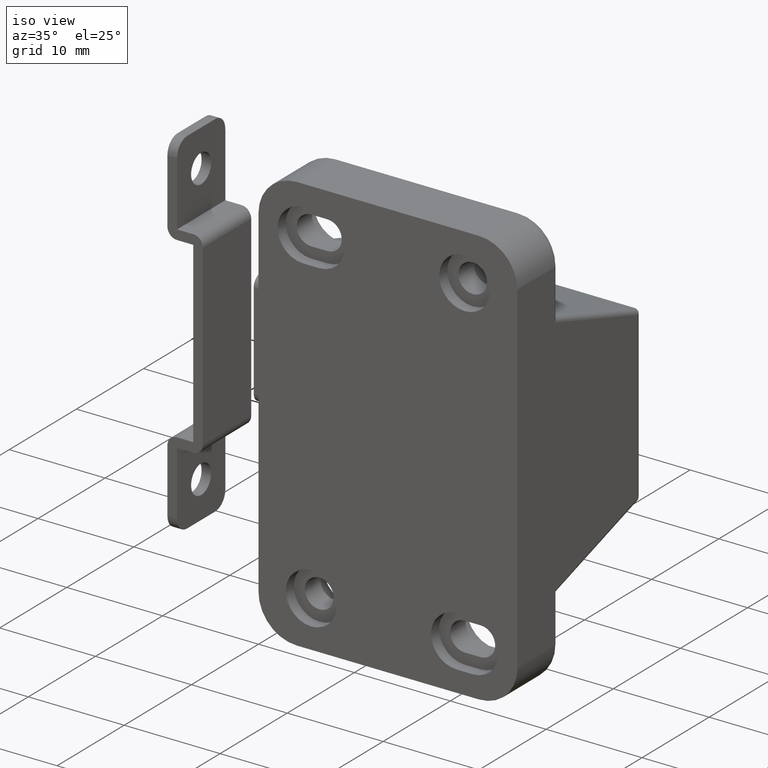
[diagram: clean part render]
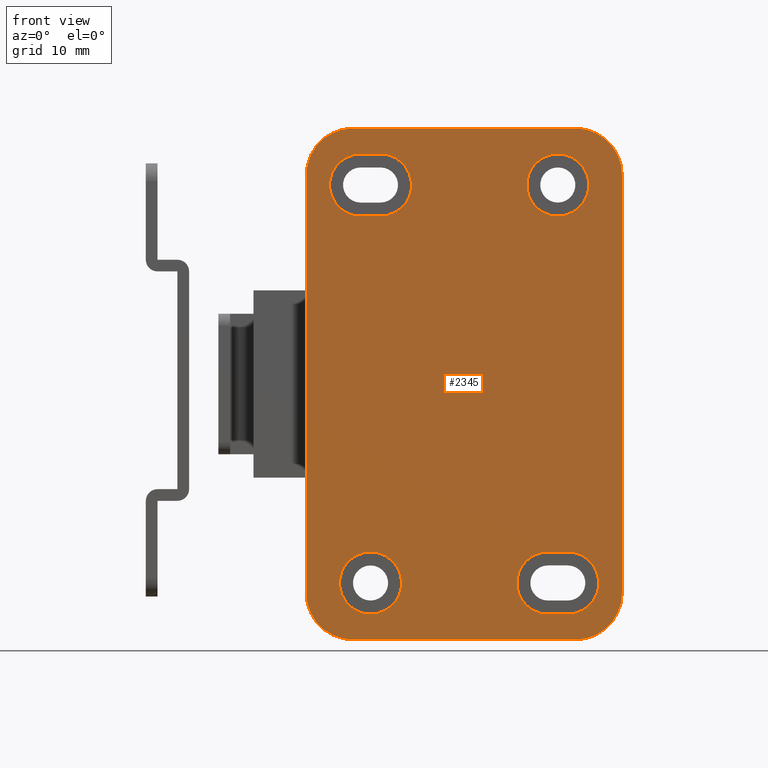
[diagram: tour spotlight — one face highlighted and labeled with its STEP entity id]
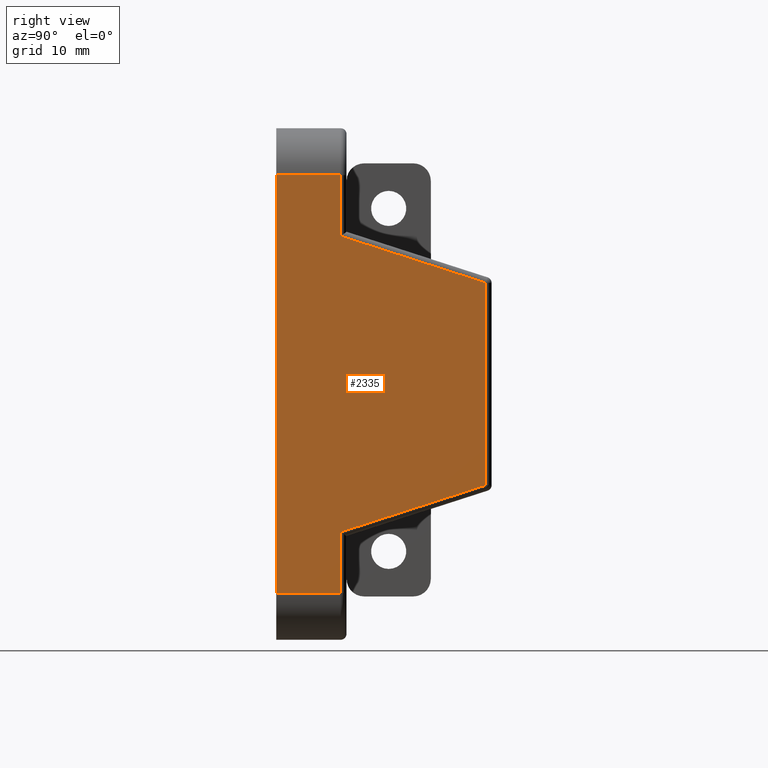
[diagram: tour spotlight — one face highlighted and labeled with its STEP entity id]
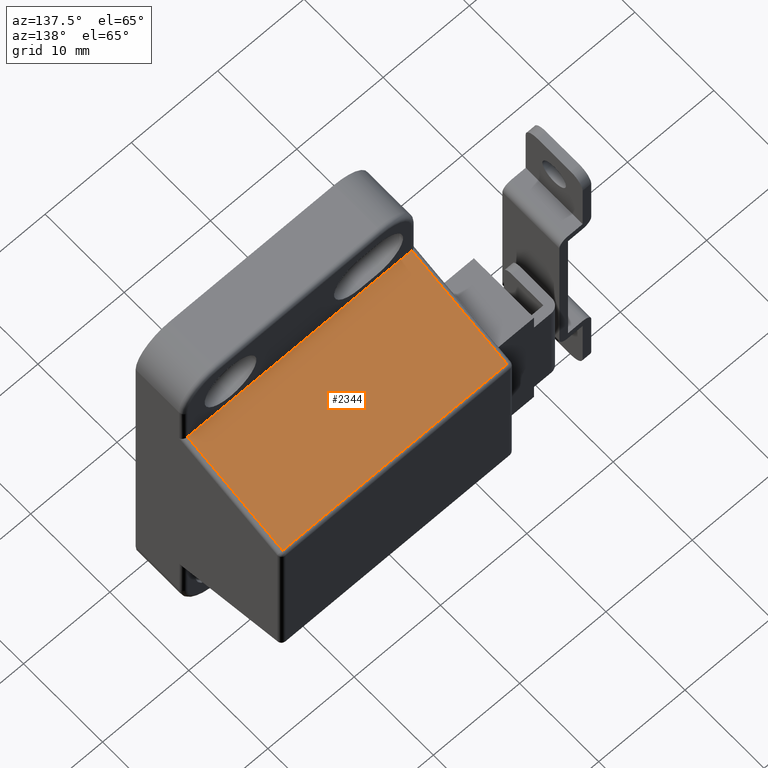
[diagram: tour spotlight — one face highlighted and labeled with its STEP entity id]
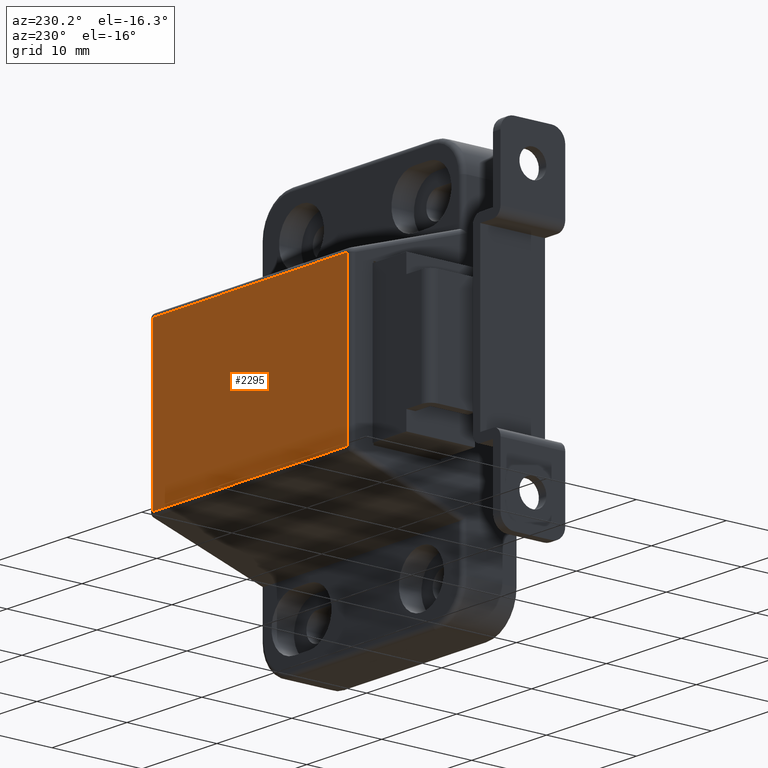
[diagram: tour spotlight — one face highlighted and labeled with its STEP entity id]
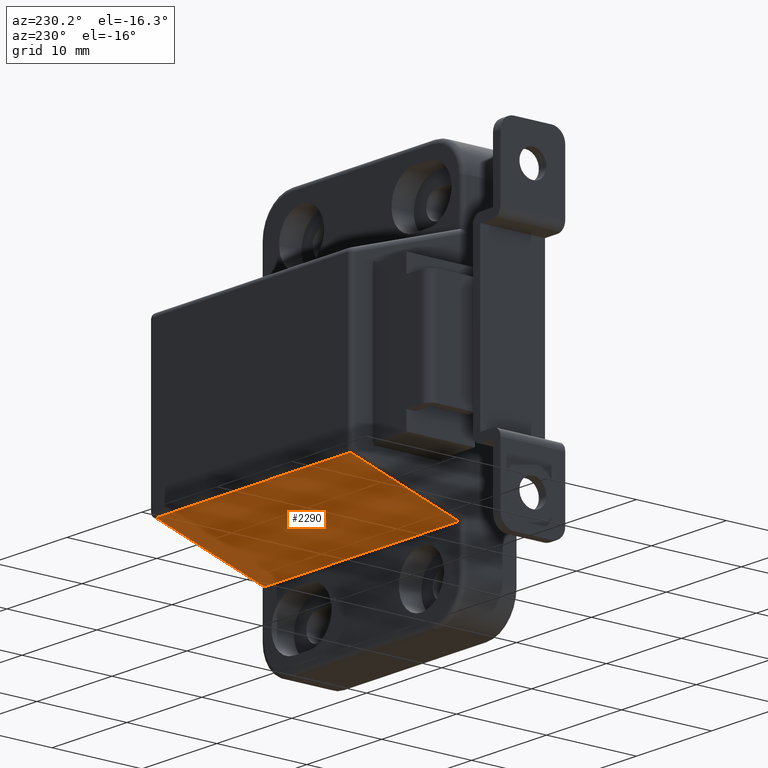
[diagram: tour spotlight — one face highlighted and labeled with its STEP entity id]
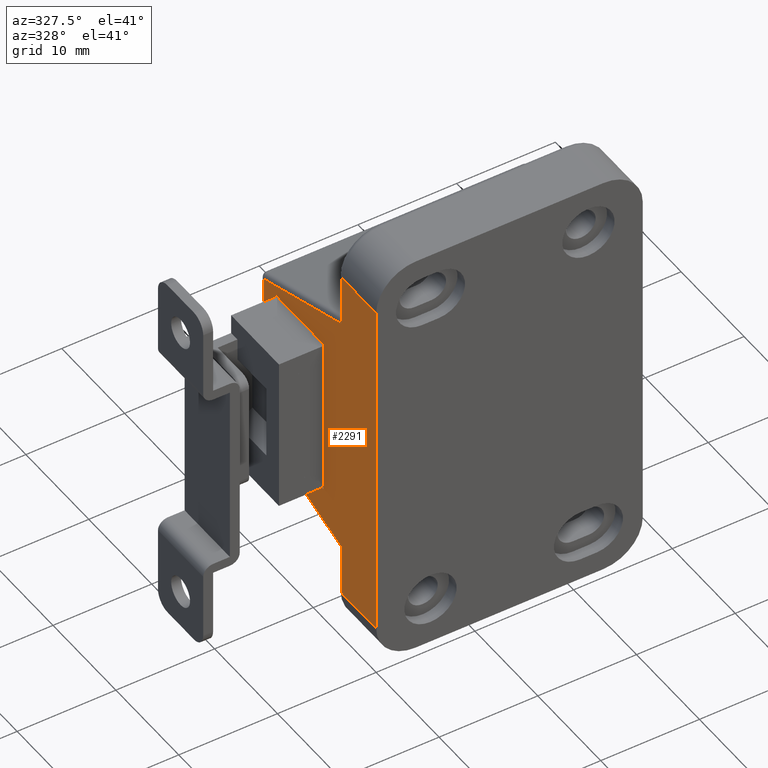
[diagram: tour spotlight — one face highlighted and labeled with its STEP entity id]
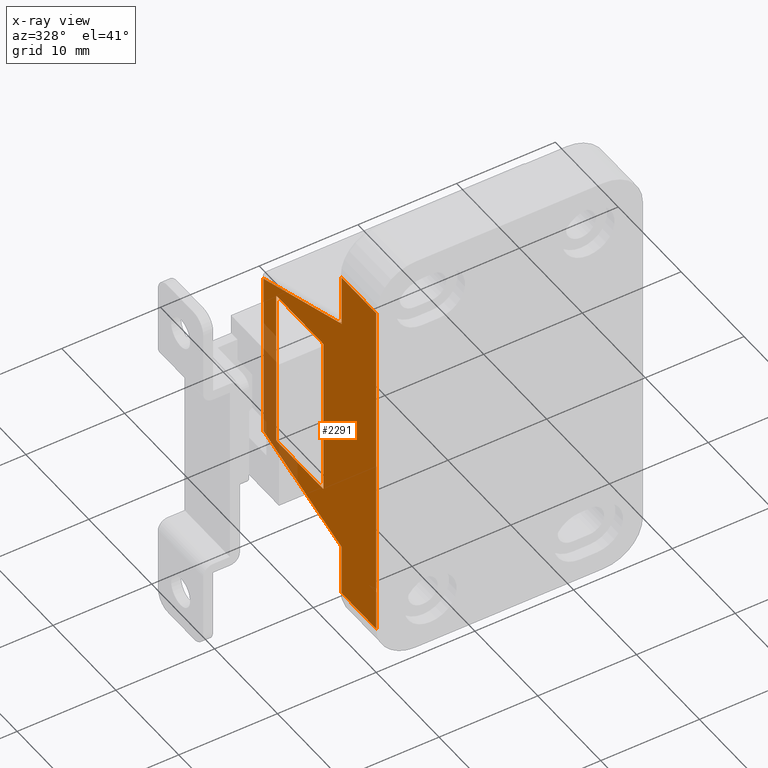
[diagram: x-ray of the same camera — body ghosted, this tour face saturated]
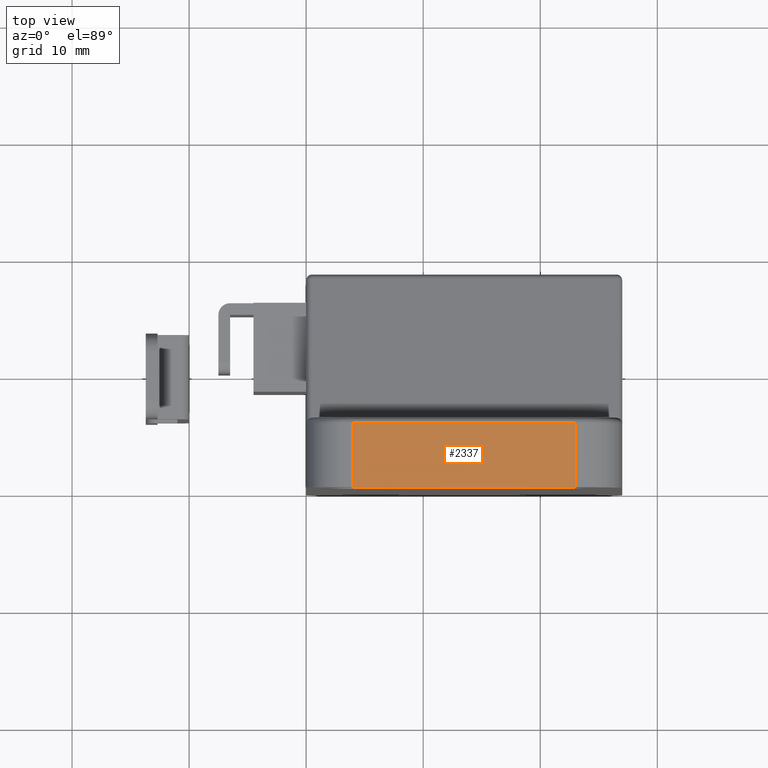
[diagram: tour spotlight — one face highlighted and labeled with its STEP entity id]
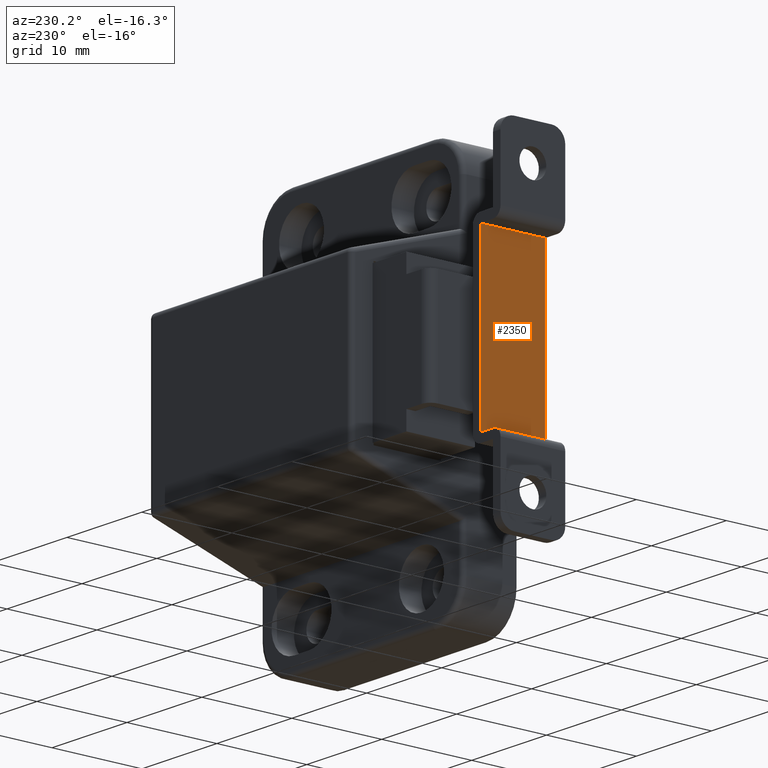
[diagram: tour spotlight — one face highlighted and labeled with its STEP entity id]
A machine part: a face-by-face anatomy tour. The part has 138 B-rep faces; the first image is the clean iso view, then the 8 largest visible faces are spotlighted one at a time (largest first), each with its STEP entity span.

Face 1 — front view, entity #2345. In plain terms, the highlighted planar face has unit normal (0, 1, 0).
Definition (entity closure, byte-faithful):
#73=FACE_BOUND('',#911,.T.);
#74=FACE_BOUND('',#912,.T.);
#75=FACE_BOUND('',#913,.T.);
#76=FACE_BOUND('',#914,.T.);
#117=PLANE('',#2561);
#205=LINE('',#3515,#432);
#213=LINE('',#3532,#440);
#217=LINE('',#3565,#444);
#221=LINE('',#3576,#448);
#225=LINE('',#3590,#452);
#230=LINE('',#3604,#457);
#262=LINE('',#3714,#489);
#265=LINE('',#3722,#492);
#432=VECTOR('',#2812,35.7);
#440=VECTOR('',#2826,19.);
#444=VECTOR('',#2864,1.7);
#448=VECTOR('',#2876,1.7);
#452=VECTOR('',#2888,1.7);
#457=VECTOR('',#2901,1.7);
#489=VECTOR('',#3027,35.7);
#492=VECTOR('',#3036,19.);
#753=FACE_OUTER_BOUND('',#910,.T.);
#910=EDGE_LOOP('',(#1943,#1944,#1945,#1946,#1947,#1948,#1949,#1950));
#911=EDGE_LOOP('',(#1951));
#912=EDGE_LOOP('',(#1952));
#913=EDGE_LOOP('',(#1953,#1954,#1955,#1956));
#914=EDGE_LOOP('',(#1957,#1958,#1959,#1960));
#1011=CIRCLE('',#2472,4.);
#1012=CIRCLE('',#2475,4.);
#1014=CIRCLE('',#2479,2.65);
#1017=CIRCLE('',#2484,2.65);
#1019=CIRCLE('',#2488,2.65);
#1021=CIRCLE('',#2492,2.65);
#1025=CIRCLE('',#2500,2.65);
#1027=CIRCLE('',#2504,2.65);
#1046=CIRCLE('',#2551,4.);
#1047=CIRCLE('',#2554,4.);
#1115=VERTEX_POINT('',#3512);
#1116=VERTEX_POINT('',#3514);
#1121=VERTEX_POINT('',#3526);
#1122=VERTEX_POINT('',#3530);
#1123=VERTEX_POINT('',#3534);
#1125=VERTEX_POINT('',#3541);
#1128=VERTEX_POINT('',#3549);
#1130=VERTEX_POINT('',#3555);
#1131=VERTEX_POINT('',#3556);
#1134=VERTEX_POINT('',#3564);
#1136=VERTEX_POINT('',#3570);
#1142=VERTEX_POINT('',#3588);
#1143=VERTEX_POINT('',#3589);
#1146=VERTEX_POINT('',#3597);
#1148=VERTEX_POINT('',#3603);
#1179=VERTEX_POINT('',#3712);
#1180=VERTEX_POINT('',#3716);
#1181=VERTEX_POINT('',#3720);
#1356=EDGE_CURVE('',#1116,#1115,#205,.T.);
#1363=EDGE_CURVE('',#1115,#1121,#1011,.T.);
#1365=EDGE_CURVE('',#1121,#1122,#213,.T.);
#1367=EDGE_CURVE('',#1122,#1123,#1012,.T.);
#1369=EDGE_CURVE('',#1125,#1125,#1014,.T.);
#1372=EDGE_CURVE('',#1128,#1128,#1017,.T.);
#1374=EDGE_CURVE('',#1130,#1131,#1019,.T.);
#1378=EDGE_CURVE('',#1134,#1130,#217,.T.);
#1381=EDGE_CURVE('',#1136,#1134,#1021,.T.);
#1384=EDGE_CURVE('',#1131,#1136,#221,.T.);
#1390=EDGE_CURVE('',#1142,#1143,#225,.T.);
#1394=EDGE_CURVE('',#1146,#1142,#1025,.T.);
#1397=EDGE_CURVE('',#1148,#1146,#230,.T.);
#1400=EDGE_CURVE('',#1143,#1148,#1027,.T.);
#1448=EDGE_CURVE('',#1123,#1179,#262,.T.);
#1450=EDGE_CURVE('',#1179,#1180,#1046,.T.);
#1452=EDGE_CURVE('',#1180,#1181,#265,.T.);
#1453=EDGE_CURVE('',#1181,#1116,#1047,.T.);
#1943=ORIENTED_EDGE('',*,*,#1356,.T.);
#1944=ORIENTED_EDGE('',*,*,#1363,.T.);
#1945=ORIENTED_EDGE('',*,*,#1365,.T.);
#1946=ORIENTED_EDGE('',*,*,#1367,.T.);
#1947=ORIENTED_EDGE('',*,*,#1448,.T.);
#1948=ORIENTED_EDGE('',*,*,#1450,.T.);
#1949=ORIENTED_EDGE('',*,*,#1452,.T.);
#1950=ORIENTED_EDGE('',*,*,#1453,.T.);
#1951=ORIENTED_EDGE('',*,*,#1369,.T.);
#1952=ORIENTED_EDGE('',*,*,#1372,.T.);
#1953=ORIENTED_EDGE('',*,*,#1374,.T.);
#1954=ORIENTED_EDGE('',*,*,#1384,.T.);
#1955=ORIENTED_EDGE('',*,*,#1381,.T.);
#1956=ORIENTED_EDGE('',*,*,#1378,.T.);
#1957=ORIENTED_EDGE('',*,*,#1390,.T.);
#1958=ORIENTED_EDGE('',*,*,#1400,.T.);
#1959=ORIENTED_EDGE('',*,*,#1397,.T.);
#1960=ORIENTED_EDGE('',*,*,#1394,.T.);
#2345=ADVANCED_FACE('',(#753,#73,#74,#75,#76),#117,.F.);
#2472=AXIS2_PLACEMENT_3D('',#3528,#2821,#2822);
#2475=AXIS2_PLACEMENT_3D('',#3536,#2830,#2831);
#2479=AXIS2_PLACEMENT_3D('',#3542,#2838,#2839);
#2484=AXIS2_PLACEMENT_3D('',#3550,#2848,#2849);
#2488=AXIS2_PLACEMENT_3D('',#3557,#2856,#2857);
#2492=AXIS2_PLACEMENT_3D('',#3571,#2869,#2870);
#2500=AXIS2_PLACEMENT_3D('',#3598,#2894,#2895);
#2504=AXIS2_PLACEMENT_3D('',#3609,#2906,#2907);
#2551=AXIS2_PLACEMENT_3D('',#3718,#3031,#3032);
#2554=AXIS2_PLACEMENT_3D('',#3724,#3039,#3040);
#2561=AXIS2_PLACEMENT_3D('',#3743,#3061,#3062);
#2812=DIRECTION('',(-1.,0.,0.));
#2821=DIRECTION('center_axis',(0.,-1.,0.));
#2822=DIRECTION('ref_axis',(0.,0.,1.));
#2826=DIRECTION('',(1.11022302462516E-15,0.,-1.));
#2830=DIRECTION('center_axis',(0.,-1.,0.));
#2831=DIRECTION('ref_axis',(-1.,0.,0.));
#2838=DIRECTION('center_axis',(0.,1.,0.));
#2839=DIRECTION('ref_axis',(1.,0.,2.48789473305357E-16));
#2848=DIRECTION('center_axis',(0.,1.,0.));
#2849=DIRECTION('ref_axis',(1.,0.,2.48789473305357E-16));
#2856=DIRECTION('center_axis',(0.,1.,0.));
#2857=DIRECTION('ref_axis',(-1.,0.,-2.48789473305357E-16));
#2864=DIRECTION('',(2.48789473305357E-16,0.,-1.));
#2869=DIRECTION('center_axis',(0.,1.,0.));
#2870=DIRECTION('ref_axis',(1.,0.,2.48789473305357E-16));
#2876=DIRECTION('',(-2.48789473305357E-16,0.,1.));
#2888=DIRECTION('',(2.48789473305357E-16,0.,-1.));
#2894=DIRECTION('center_axis',(0.,1.,0.));
#2895=DIRECTION('ref_axis',(1.,0.,2.48789473305357E-16));
#2901=DIRECTION('',(-2.48789473305357E-16,0.,1.));
#2906=DIRECTION('center_axis',(0.,1.,0.));
#2907=DIRECTION('ref_axis',(-1.,0.,-3.93134309232521E-17));
#3027=DIRECTION('',(1.,0.,2.48789473305357E-16));
#3031=DIRECTION('center_axis',(0.,-1.,0.));
#3032=DIRECTION('ref_axis',(1.11022302462516E-15,0.,-1.));
#3036=DIRECTION('',(2.3373116307898E-16,0.,1.));
#3039=DIRECTION('center_axis',(0.,-1.,0.));
#3040=DIRECTION('ref_axis',(1.,0.,1.38777878078145E-16));
#3061=DIRECTION('center_axis',(0.,1.,0.));
#3062=DIRECTION('ref_axis',(0.,0.,1.));
#3512=CARTESIAN_POINT('',(-17.85,0.,-2.22044604925031E-15));
#3514=CARTESIAN_POINT('',(17.85,0.,8.70952663313982E-15));
#3515=CARTESIAN_POINT('',(-39.4288988106387,0.,0.));
#3526=CARTESIAN_POINT('',(-21.85,0.,-4.));
#3528=CARTESIAN_POINT('Origin',(-17.85,0.,-4.));
#3530=CARTESIAN_POINT('',(-21.85,0.,-23.));
#3532=CARTESIAN_POINT('',(-21.85,0.,-4.));
#3534=CARTESIAN_POINT('',(-17.85,0.,-27.));
#3536=CARTESIAN_POINT('Origin',(-17.85,0.,-23.));
#3541=CARTESIAN_POINT('',(14.35,0.,-21.5));
#3542=CARTESIAN_POINT('Origin',(17.,0.,-21.5));
#3549=CARTESIAN_POINT('',(-19.65,0.,-5.5));
#3550=CARTESIAN_POINT('Origin',(-17.,0.,-5.5));
#3555=CARTESIAN_POINT('',(19.65,0.,-6.35));
#3556=CARTESIAN_POINT('',(14.35,0.,-6.35));
#3557=CARTESIAN_POINT('Origin',(17.,0.,-6.35));
#3564=CARTESIAN_POINT('',(19.65,0.,-4.65));
#3565=CARTESIAN_POINT('',(19.65,0.,-8.95000000000002));
#3570=CARTESIAN_POINT('',(14.35,0.,-4.65));
#3571=CARTESIAN_POINT('Origin',(17.,0.,-4.65));
#3576=CARTESIAN_POINT('',(14.35,0.,-9.80000000000001));
#3588=CARTESIAN_POINT('',(-14.35,0.,-20.65));
#3589=CARTESIAN_POINT('',(-14.35,0.,-22.35));
#3590=CARTESIAN_POINT('',(-14.35,0.,-16.95));
#3597=CARTESIAN_POINT('',(-19.65,0.,-20.65));
#3598=CARTESIAN_POINT('Origin',(-17.,0.,-20.65));
#3603=CARTESIAN_POINT('',(-19.65,0.,-22.35));
#3604=CARTESIAN_POINT('',(-19.65,0.,-17.8));
#3609=CARTESIAN_POINT('Origin',(-17.,0.,-22.35));
#3712=CARTESIAN_POINT('',(17.85,0.,-27.));
#3714=CARTESIAN_POINT('',(-17.85,0.,-27.));
#3716=CARTESIAN_POINT('',(21.85,0.,-23.));
#3718=CARTESIAN_POINT('Origin',(17.85,0.,-23.));
#3720=CARTESIAN_POINT('',(21.85,0.,-3.99999999999999));
#3722=CARTESIAN_POINT('',(21.85,0.,-23.));
#3724=CARTESIAN_POINT('Origin',(17.85,0.,-3.99999999999999));
#3743=CARTESIAN_POINT('Origin',(-39.4288988106387,0.,-13.25));

Face 2 — right view, entity #2335. In plain terms, the highlighted planar face has unit normal (1, 0, 0).
Definition (entity closure, byte-faithful):
#109=PLANE('',#2549);
#174=LINE('',#3401,#401);
#179=LINE('',#3424,#406);
#182=LINE('',#3434,#409);
#189=LINE('',#3463,#416);
#199=LINE('',#3496,#426);
#214=LINE('',#3535,#441);
#261=LINE('',#3713,#488);
#262=LINE('',#3714,#489);
#401=VECTOR('',#2683,13.0291979799219);
#406=VECTOR('',#2710,17.271838872587);
#409=VECTOR('',#2719,5.2140805637065);
#416=VECTOR('',#2754,13.0291979799219);
#426=VECTOR('',#2794,5.2140805637065);
#441=VECTOR('',#2829,5.5);
#488=VECTOR('',#3026,5.5);
#489=VECTOR('',#3027,35.7);
#743=FACE_OUTER_BOUND('',#900,.T.);
#900=EDGE_LOOP('',(#1899,#1900,#1901,#1902,#1903,#1904,#1905,#1906));
#1081=VERTEX_POINT('',#3396);
#1082=VERTEX_POINT('',#3400);
#1089=VERTEX_POINT('',#3419);
#1092=VERTEX_POINT('',#3432);
#1093=VERTEX_POINT('',#3433);
#1108=VERTEX_POINT('',#3489);
#1123=VERTEX_POINT('',#3534);
#1179=VERTEX_POINT('',#3712);
#1297=EDGE_CURVE('',#1082,#1081,#174,.T.);
#1309=EDGE_CURVE('',#1081,#1089,#179,.T.);
#1313=EDGE_CURVE('',#1092,#1093,#182,.T.);
#1329=EDGE_CURVE('',#1089,#1092,#189,.T.);
#1347=EDGE_CURVE('',#1108,#1082,#199,.T.);
#1366=EDGE_CURVE('',#1123,#1093,#214,.T.);
#1447=EDGE_CURVE('',#1179,#1108,#261,.T.);
#1448=EDGE_CURVE('',#1123,#1179,#262,.T.);
#1899=ORIENTED_EDGE('',*,*,#1347,.F.);
#1900=ORIENTED_EDGE('',*,*,#1447,.F.);
#1901=ORIENTED_EDGE('',*,*,#1448,.F.);
#1902=ORIENTED_EDGE('',*,*,#1366,.T.);
#1903=ORIENTED_EDGE('',*,*,#1313,.F.);
#1904=ORIENTED_EDGE('',*,*,#1329,.F.);
#1905=ORIENTED_EDGE('',*,*,#1309,.F.);
#1906=ORIENTED_EDGE('',*,*,#1297,.F.);
#2335=ADVANCED_FACE('',(#743),#109,.T.);
#2549=AXIS2_PLACEMENT_3D('',#3711,#3024,#3025);
#2683=DIRECTION('',(-0.307002779922758,0.951708617760551,-7.63790599202635E-17));
#2710=DIRECTION('',(-1.,0.,-2.48789473305357E-16));
#2719=DIRECTION('',(-1.,0.,-2.48789473305357E-16));
#2754=DIRECTION('',(-0.307002779922759,-0.951708617760551,-7.63790599202637E-17));
#2794=DIRECTION('',(-1.,0.,-2.48789473305357E-16));
#2829=DIRECTION('',(0.,1.,0.));
#3024=DIRECTION('center_axis',(2.48789473305357E-16,0.,-1.));
#3025=DIRECTION('ref_axis',(-1.,0.,0.));
#3026=DIRECTION('',(0.,1.,0.));
#3027=DIRECTION('',(1.,0.,2.48789473305357E-16));
#3396=CARTESIAN_POINT('',(8.63591943629348,17.9,-27.));
#3400=CARTESIAN_POINT('',(12.6359194362935,5.5,-27.));
#3401=CARTESIAN_POINT('',(11.6292352292913,8.62072104170686,-27.));
#3419=CARTESIAN_POINT('',(-8.63591943629347,17.9,-27.));
#3424=CARTESIAN_POINT('',(4.42500000000001,17.9,-27.));
#3432=CARTESIAN_POINT('',(-12.6359194362935,5.5,-27.));
#3433=CARTESIAN_POINT('',(-17.85,5.5,-27.));
#3434=CARTESIAN_POINT('',(8.92500000000001,5.5,-27.));
#3463=CARTESIAN_POINT('',(-11.9468601114779,7.63608390692836,-27.));
#3489=CARTESIAN_POINT('',(17.85,5.5,-27.));
#3496=CARTESIAN_POINT('',(8.92500000000001,5.5,-27.));
#3534=CARTESIAN_POINT('',(-17.85,0.,-27.));
#3535=CARTESIAN_POINT('',(-17.85,0.,-27.));
#3711=CARTESIAN_POINT('Origin',(17.85,0.,-27.));
#3712=CARTESIAN_POINT('',(17.85,0.,-27.));
#3713=CARTESIAN_POINT('',(17.85,0.,-27.));
#3714=CARTESIAN_POINT('',(-17.85,0.,-27.));

Face 3 — auxiliary view, entity #2344. In plain terms, the highlighted planar face has unit normal (0, 0.307, 0.9517).
Definition (entity closure, byte-faithful):
#116=PLANE('',#2560);
#172=LINE('',#3388,#399);
#175=LINE('',#3403,#402);
#193=LINE('',#3469,#420);
#200=LINE('',#3498,#427);
#399=VECTOR('',#2669,12.6651174162154);
#402=VECTOR('',#2684,12.6651174162154);
#420=VECTOR('',#2762,26.);
#427=VECTOR('',#2797,26.);
#752=FACE_OUTER_BOUND('',#909,.T.);
#909=EDGE_LOOP('',(#1939,#1940,#1941,#1942));
#1076=VERTEX_POINT('',#3383);
#1077=VERTEX_POINT('',#3387);
#1079=VERTEX_POINT('',#3393);
#1083=VERTEX_POINT('',#3402);
#1291=EDGE_CURVE('',#1077,#1076,#172,.T.);
#1298=EDGE_CURVE('',#1079,#1083,#175,.T.);
#1333=EDGE_CURVE('',#1076,#1079,#193,.T.);
#1348=EDGE_CURVE('',#1083,#1077,#200,.T.);
#1939=ORIENTED_EDGE('',*,*,#1291,.F.);
#1940=ORIENTED_EDGE('',*,*,#1348,.F.);
#1941=ORIENTED_EDGE('',*,*,#1298,.F.);
#1942=ORIENTED_EDGE('',*,*,#1333,.F.);
#2344=ADVANCED_FACE('',(#752),#116,.T.);
#2560=AXIS2_PLACEMENT_3D('',#3742,#3059,#3060);
#2669=DIRECTION('',(-0.307002779922758,0.951708617760551,0.));
#2684=DIRECTION('',(0.307002779922758,-0.951708617760551,7.63790599202635E-17));
#2762=DIRECTION('',(0.,0.,-1.));
#2797=DIRECTION('',(0.,0.,1.));
#3059=DIRECTION('center_axis',(0.951708617760551,0.307002779922758,0.));
#3060=DIRECTION('ref_axis',(0.307002779922758,-0.951708617760551,0.));
#3383=CARTESIAN_POINT('',(9.11177374517376,18.0535013899614,-0.5));
#3387=CARTESIAN_POINT('',(13.,6.,-0.5));
#3388=CARTESIAN_POINT('',(8.602313910903,19.6328268762007,-0.5));
#3393=CARTESIAN_POINT('',(9.11177374517376,18.0535013899614,-26.5));
#3402=CARTESIAN_POINT('',(13.,6.,-26.5));
#3403=CARTESIAN_POINT('',(12.1050895381715,8.77422243166824,-26.5));
#3469=CARTESIAN_POINT('',(9.11177374517376,18.0535013899614,0.));
#3498=CARTESIAN_POINT('',(13.,6.,-20.));
#3742=CARTESIAN_POINT('Origin',(9.00000000000001,18.4,0.));

Face 4 — auxiliary view, entity #2295. In plain terms, the highlighted planar face has unit normal (0, 1, 0).
Definition (entity closure, byte-faithful):
#87=PLANE('',#2476);
#177=LINE('',#3414,#404);
#178=LINE('',#3423,#405);
#191=LINE('',#3466,#418);
#192=LINE('',#3468,#419);
#404=VECTOR('',#2698,17.2718388725869);
#405=VECTOR('',#2709,17.2718388725869);
#418=VECTOR('',#2758,26.);
#419=VECTOR('',#2761,26.);
#703=FACE_OUTER_BOUND('',#844,.T.);
#844=EDGE_LOOP('',(#1736,#1737,#1738,#1739));
#1075=VERTEX_POINT('',#3381);
#1080=VERTEX_POINT('',#3394);
#1086=VERTEX_POINT('',#3409);
#1087=VERTEX_POINT('',#3416);
#1304=EDGE_CURVE('',#1075,#1086,#177,.T.);
#1308=EDGE_CURVE('',#1087,#1080,#178,.T.);
#1331=EDGE_CURVE('',#1086,#1087,#191,.T.);
#1332=EDGE_CURVE('',#1080,#1075,#192,.T.);
#1736=ORIENTED_EDGE('',*,*,#1308,.F.);
#1737=ORIENTED_EDGE('',*,*,#1331,.F.);
#1738=ORIENTED_EDGE('',*,*,#1304,.F.);
#1739=ORIENTED_EDGE('',*,*,#1332,.F.);
#2295=ADVANCED_FACE('',(#703),#87,.T.);
#2476=AXIS2_PLACEMENT_3D('',#3537,#2832,#2833);
#2698=DIRECTION('',(-1.,0.,0.));
#2709=DIRECTION('',(1.,0.,2.48789473305357E-16));
#2758=DIRECTION('',(0.,0.,-1.));
#2761=DIRECTION('',(0.,0.,1.));
#2832=DIRECTION('center_axis',(0.,1.,0.));
#2833=DIRECTION('ref_axis',(1.,0.,0.));
#3381=CARTESIAN_POINT('',(8.63591943629348,18.4,-0.5));
#3394=CARTESIAN_POINT('',(8.63591943629348,18.4,-26.5));
#3409=CARTESIAN_POINT('',(-8.63591943629346,18.4,-0.5));
#3414=CARTESIAN_POINT('',(-24.2144494053193,18.4,-0.5));
#3416=CARTESIAN_POINT('',(-8.63591943629346,18.4,-26.5));
#3423=CARTESIAN_POINT('',(4.42500000000001,18.4,-26.5));
#3466=CARTESIAN_POINT('',(-8.63591943629346,18.4,0.));
#3468=CARTESIAN_POINT('',(8.63591943629348,18.4,0.));
#3537=CARTESIAN_POINT('Origin',(-8.99999999999999,18.4,0.));

Face 5 — auxiliary view, entity #2290. In plain terms, the highlighted planar face has unit normal (0, 0.307, -0.9517).
Definition (entity closure, byte-faithful):
#84=PLANE('',#2469);
#181=LINE('',#3429,#408);
#188=LINE('',#3462,#415);
#190=LINE('',#3465,#417);
#203=LINE('',#3510,#430);
#408=VECTOR('',#2714,12.6651174162154);
#415=VECTOR('',#2753,12.6651174162154);
#417=VECTOR('',#2757,26.);
#430=VECTOR('',#2808,26.);
#698=FACE_OUTER_BOUND('',#838,.T.);
#838=EDGE_LOOP('',(#1708,#1709,#1710,#1711));
#1085=VERTEX_POINT('',#3407);
#1088=VERTEX_POINT('',#3417);
#1091=VERTEX_POINT('',#3428);
#1095=VERTEX_POINT('',#3437);
#1311=EDGE_CURVE('',#1085,#1091,#181,.T.);
#1328=EDGE_CURVE('',#1095,#1088,#188,.T.);
#1330=EDGE_CURVE('',#1088,#1085,#190,.T.);
#1354=EDGE_CURVE('',#1091,#1095,#203,.T.);
#1708=ORIENTED_EDGE('',*,*,#1311,.F.);
#1709=ORIENTED_EDGE('',*,*,#1330,.F.);
#1710=ORIENTED_EDGE('',*,*,#1328,.F.);
#1711=ORIENTED_EDGE('',*,*,#1354,.F.);
#2290=ADVANCED_FACE('',(#698),#84,.T.);
#2469=AXIS2_PLACEMENT_3D('',#3509,#2806,#2807);
#2714=DIRECTION('',(-0.307002779922759,-0.951708617760551,0.));
#2753=DIRECTION('',(0.307002779922759,0.951708617760551,7.63790599202637E-17));
#2757=DIRECTION('',(0.,0.,1.));
#2806=DIRECTION('center_axis',(-0.951708617760551,0.307002779922759,0.));
#2807=DIRECTION('ref_axis',(0.307002779922758,0.951708617760551,0.));
#2808=DIRECTION('',(0.,0.,-1.));
#3407=CARTESIAN_POINT('',(-9.11177374517374,18.0535013899614,-0.5));
#3417=CARTESIAN_POINT('',(-9.11177374517374,18.0535013899614,-26.5));
#3428=CARTESIAN_POINT('',(-13.,6.,-0.5));
#3429=CARTESIAN_POINT('',(-14.3185154953176,1.91260196451554,-0.5));
#3437=CARTESIAN_POINT('',(-13.,6.,-26.5));
#3462=CARTESIAN_POINT('',(-12.4227144203581,7.78958529688974,-26.5));
#3465=CARTESIAN_POINT('',(-9.11177374517374,18.0535013899614,0.));
#3509=CARTESIAN_POINT('Origin',(-13.,6.,0.));
#3510=CARTESIAN_POINT('',(-13.,6.,0.));

Face 6 — auxiliary view, entity #2291. An x-ray twin of the same camera follows (body ghosted, this face saturated) — the face is partly hidden behind the body. In plain terms, the highlighted planar face has unit normal (-1, 0, 0).
Definition (entity closure, byte-faithful):
#56=FACE_BOUND('',#840,.T.);
#85=PLANE('',#2470);
#173=LINE('',#3390,#400);
#176=LINE('',#3413,#403);
#180=LINE('',#3427,#407);
#187=LINE('',#3460,#414);
#194=LINE('',#3472,#421);
#204=LINE('',#3513,#431);
#205=LINE('',#3515,#432);
#206=LINE('',#3516,#433);
#207=LINE('',#3519,#434);
#208=LINE('',#3521,#435);
#209=LINE('',#3523,#436);
#210=LINE('',#3524,#437);
#400=VECTOR('',#2670,13.0291979799219);
#403=VECTOR('',#2697,17.271838872587);
#407=VECTOR('',#2713,13.0291979799219);
#414=VECTOR('',#2750,5.2140805637065);
#421=VECTOR('',#2765,5.2140805637065);
#431=VECTOR('',#2811,5.5);
#432=VECTOR('',#2812,35.7);
#433=VECTOR('',#2813,5.5);
#434=VECTOR('',#2814,7.5);
#435=VECTOR('',#2815,16.4);
#436=VECTOR('',#2816,7.5);
#437=VECTOR('',#2817,16.4);
#699=FACE_OUTER_BOUND('',#839,.T.);
#839=EDGE_LOOP('',(#1712,#1713,#1714,#1715,#1716,#1717,#1718,#1719));
#840=EDGE_LOOP('',(#1720,#1721,#1722,#1723));
#1074=VERTEX_POINT('',#3380);
#1078=VERTEX_POINT('',#3389);
#1084=VERTEX_POINT('',#3406);
#1090=VERTEX_POINT('',#3426);
#1100=VERTEX_POINT('',#3453);
#1102=VERTEX_POINT('',#3471);
#1115=VERTEX_POINT('',#3512);
#1116=VERTEX_POINT('',#3514);
#1117=VERTEX_POINT('',#3517);
#1118=VERTEX_POINT('',#3518);
#1119=VERTEX_POINT('',#3520);
#1120=VERTEX_POINT('',#3522);
#1292=EDGE_CURVE('',#1074,#1078,#173,.T.);
#1303=EDGE_CURVE('',#1084,#1074,#176,.T.);
#1310=EDGE_CURVE('',#1090,#1084,#180,.T.);
#1327=EDGE_CURVE('',#1100,#1090,#187,.T.);
#1334=EDGE_CURVE('',#1078,#1102,#194,.T.);
#1355=EDGE_CURVE('',#1115,#1100,#204,.T.);
#1356=EDGE_CURVE('',#1116,#1115,#205,.T.);
#1357=EDGE_CURVE('',#1116,#1102,#206,.T.);
#1358=EDGE_CURVE('',#1117,#1118,#207,.T.);
#1359=EDGE_CURVE('',#1118,#1119,#208,.T.);
#1360=EDGE_CURVE('',#1119,#1120,#209,.T.);
#1361=EDGE_CURVE('',#1120,#1117,#210,.T.);
#1712=ORIENTED_EDGE('',*,*,#1334,.F.);
#1713=ORIENTED_EDGE('',*,*,#1292,.F.);
#1714=ORIENTED_EDGE('',*,*,#1303,.F.);
#1715=ORIENTED_EDGE('',*,*,#1310,.F.);
#1716=ORIENTED_EDGE('',*,*,#1327,.F.);
#1717=ORIENTED_EDGE('',*,*,#1355,.F.);
#1718=ORIENTED_EDGE('',*,*,#1356,.F.);
#1719=ORIENTED_EDGE('',*,*,#1357,.T.);
#1720=ORIENTED_EDGE('',*,*,#1358,.T.);
#1721=ORIENTED_EDGE('',*,*,#1359,.T.);
#1722=ORIENTED_EDGE('',*,*,#1360,.T.);
#1723=ORIENTED_EDGE('',*,*,#1361,.T.);
#2291=ADVANCED_FACE('',(#699,#56),#85,.T.);
#2470=AXIS2_PLACEMENT_3D('',#3511,#2809,#2810);
#2670=DIRECTION('',(0.307002779922758,-0.951708617760551,0.));
#2697=DIRECTION('',(1.,0.,0.));
#2713=DIRECTION('',(0.307002779922759,0.951708617760551,0.));
#2750=DIRECTION('',(1.,0.,0.));
#2765=DIRECTION('',(1.,0.,0.));
#2809=DIRECTION('center_axis',(0.,0.,1.));
#2810=DIRECTION('ref_axis',(1.,0.,0.));
#2811=DIRECTION('',(0.,1.,0.));
#2812=DIRECTION('',(-1.,0.,0.));
#2813=DIRECTION('',(0.,1.,0.));
#2814=DIRECTION('',(5.9211894646675E-16,-1.,0.));
#2815=DIRECTION('',(-1.,-1.35393051783556E-16,0.));
#2816=DIRECTION('',(-1.48029736616687E-16,1.,0.));
#2817=DIRECTION('',(1.,0.,0.));
#3380=CARTESIAN_POINT('',(8.63591943629348,17.9,0.));
#3389=CARTESIAN_POINT('',(12.6359194362935,5.5,0.));
#3390=CARTESIAN_POINT('',(8.12645960202272,19.4793254862394,0.));
#3406=CARTESIAN_POINT('',(-8.63591943629347,17.9,0.));
#3413=CARTESIAN_POINT('',(-24.2144494053193,17.9,0.));
#3426=CARTESIAN_POINT('',(-12.6359194362935,5.5,0.));
#3427=CARTESIAN_POINT('',(-13.8426611864373,1.75910057455417,0.));
#3453=CARTESIAN_POINT('',(-17.85,5.5,-2.22044604925031E-15));
#3460=CARTESIAN_POINT('',(-19.7144494053194,5.5,0.));
#3471=CARTESIAN_POINT('',(17.85,5.5,8.70952663313982E-15));
#3472=CARTESIAN_POINT('',(-19.7144494053194,5.5,0.));
#3511=CARTESIAN_POINT('Origin',(-39.4288988106387,5.5,0.));
#3512=CARTESIAN_POINT('',(-17.85,0.,-2.22044604925031E-15));
#3513=CARTESIAN_POINT('',(-17.85,0.,-2.22044604925031E-15));
#3514=CARTESIAN_POINT('',(17.85,0.,8.70952663313982E-15));
#3515=CARTESIAN_POINT('',(-39.4288988106387,0.,0.));
#3516=CARTESIAN_POINT('',(17.85,0.,8.70952663313982E-15));
#3517=CARTESIAN_POINT('',(8.20000199999999,15.9,0.));
#3518=CARTESIAN_POINT('',(8.200002,8.4,0.));
#3519=CARTESIAN_POINT('',(8.20000199999999,10.7,0.));
#3520=CARTESIAN_POINT('',(-8.199998,8.4,0.));
#3521=CARTESIAN_POINT('',(-15.6144484053194,8.4,0.));
#3522=CARTESIAN_POINT('',(-8.199998,15.9,0.));
#3523=CARTESIAN_POINT('',(-8.199998,6.95,0.));
#3524=CARTESIAN_POINT('',(-23.8144484053194,15.9,0.));

Face 7 — top view, entity #2337. In plain terms, the highlighted planar face has unit normal (0, 0, 1).
Definition (entity closure, byte-faithful):
#110=PLANE('',#2552);
#197=LINE('',#3487,#424);
#263=LINE('',#3717,#490);
#264=LINE('',#3721,#491);
#265=LINE('',#3722,#492);
#424=VECTOR('',#2782,19.);
#490=VECTOR('',#3030,5.5);
#491=VECTOR('',#3035,5.5);
#492=VECTOR('',#3036,19.);
#745=FACE_OUTER_BOUND('',#902,.T.);
#902=EDGE_LOOP('',(#1911,#1912,#1913,#1914));
#1104=VERTEX_POINT('',#3477);
#1106=VERTEX_POINT('',#3483);
#1180=VERTEX_POINT('',#3716);
#1181=VERTEX_POINT('',#3720);
#1342=EDGE_CURVE('',#1104,#1106,#197,.T.);
#1449=EDGE_CURVE('',#1180,#1106,#263,.T.);
#1451=EDGE_CURVE('',#1181,#1104,#264,.T.);
#1452=EDGE_CURVE('',#1180,#1181,#265,.T.);
#1911=ORIENTED_EDGE('',*,*,#1342,.F.);
#1912=ORIENTED_EDGE('',*,*,#1451,.F.);
#1913=ORIENTED_EDGE('',*,*,#1452,.F.);
#1914=ORIENTED_EDGE('',*,*,#1449,.T.);
#2337=ADVANCED_FACE('',(#745),#110,.T.);
#2552=AXIS2_PLACEMENT_3D('',#3719,#3033,#3034);
#2782=DIRECTION('',(-2.3373116307898E-16,0.,-1.));
#3030=DIRECTION('',(0.,1.,0.));
#3033=DIRECTION('center_axis',(1.,0.,-2.3373116307898E-16));
#3034=DIRECTION('ref_axis',(0.,0.,-1.));
#3035=DIRECTION('',(0.,1.,0.));
#3036=DIRECTION('',(2.3373116307898E-16,0.,1.));
#3477=CARTESIAN_POINT('',(21.85,5.5,-3.99999999999999));
#3483=CARTESIAN_POINT('',(21.85,5.5,-23.));
#3487=CARTESIAN_POINT('',(21.85,5.5,-8.75));
#3716=CARTESIAN_POINT('',(21.85,0.,-23.));
#3717=CARTESIAN_POINT('',(21.85,0.,-23.));
#3719=CARTESIAN_POINT('Origin',(21.85,0.,-3.99999999999999));
#3720=CARTESIAN_POINT('',(21.85,0.,-3.99999999999999));
#3721=CARTESIAN_POINT('',(21.85,0.,-3.99999999999999));
#3722=CARTESIAN_POINT('',(21.85,0.,-23.));

Face 8 — auxiliary view, entity #2350. In plain terms, the highlighted planar face has unit normal (1, 0, 0).
Definition (entity closure, byte-faithful):
#120=PLANE('',#2571);
#281=LINE('',#3767,#508);
#284=LINE('',#3777,#511);
#285=LINE('',#3779,#512);
#286=LINE('',#3780,#513);
#508=VECTOR('',#3082,7.200003);
#511=VECTOR('',#3093,18.6);
#512=VECTOR('',#3094,7.20000300000001);
#513=VECTOR('',#3095,18.6);
#758=FACE_OUTER_BOUND('',#919,.T.);
#919=EDGE_LOOP('',(#1977,#1978,#1979,#1980));
#1194=VERTEX_POINT('',#3764);
#1195=VERTEX_POINT('',#3766);
#1198=VERTEX_POINT('',#3776);
#1199=VERTEX_POINT('',#3778);
#1471=EDGE_CURVE('',#1194,#1195,#281,.T.);
#1476=EDGE_CURVE('',#1194,#1198,#284,.T.);
#1477=EDGE_CURVE('',#1198,#1199,#285,.T.);
#1478=EDGE_CURVE('',#1195,#1199,#286,.T.);
#1977=ORIENTED_EDGE('',*,*,#1476,.T.);
#1978=ORIENTED_EDGE('',*,*,#1477,.T.);
#1979=ORIENTED_EDGE('',*,*,#1478,.F.);
#1980=ORIENTED_EDGE('',*,*,#1471,.F.);
#2350=ADVANCED_FACE('',(#758),#120,.F.);
#2571=AXIS2_PLACEMENT_3D('',#3775,#3091,#3092);
#3082=DIRECTION('',(-4.75266510432067E-16,1.,0.));
#3091=DIRECTION('center_axis',(0.,0.,1.));
#3092=DIRECTION('ref_axis',(1.,0.,0.));
#3093=DIRECTION('',(-1.,9.91841425521725E-33,0.));
#3094=DIRECTION('',(-9.91841425521725E-33,1.,0.));
#3095=DIRECTION('',(-1.,9.91841425521725E-33,0.));
#3764=CARTESIAN_POINT('',(9.26734967152896,0.0499999999999989,3.));
#3766=CARTESIAN_POINT('',(9.26734967152896,7.250003,3.));
#3767=CARTESIAN_POINT('',(9.26734967152898,-26.2071013476486,3.));
#3775=CARTESIAN_POINT('Origin',(0.100000000000016,-26.2071013476486,3.));
#3776=CARTESIAN_POINT('',(-9.33265032847103,0.0499999999999901,3.));
#3777=CARTESIAN_POINT('',(-0.0999999999999801,0.0499999999999989,3.));
#3778=CARTESIAN_POINT('',(-9.33265032847103,7.250003,3.));
#3779=CARTESIAN_POINT('',(-9.33265032847103,-26.2071013476486,3.));
#3780=CARTESIAN_POINT('',(-0.0999999999999801,7.250003,3.));